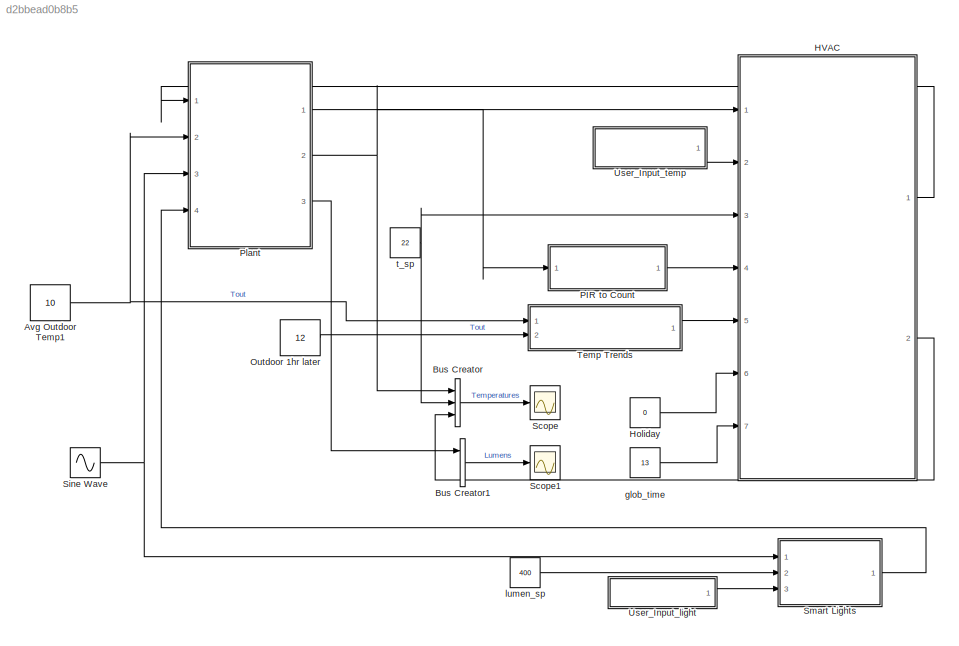
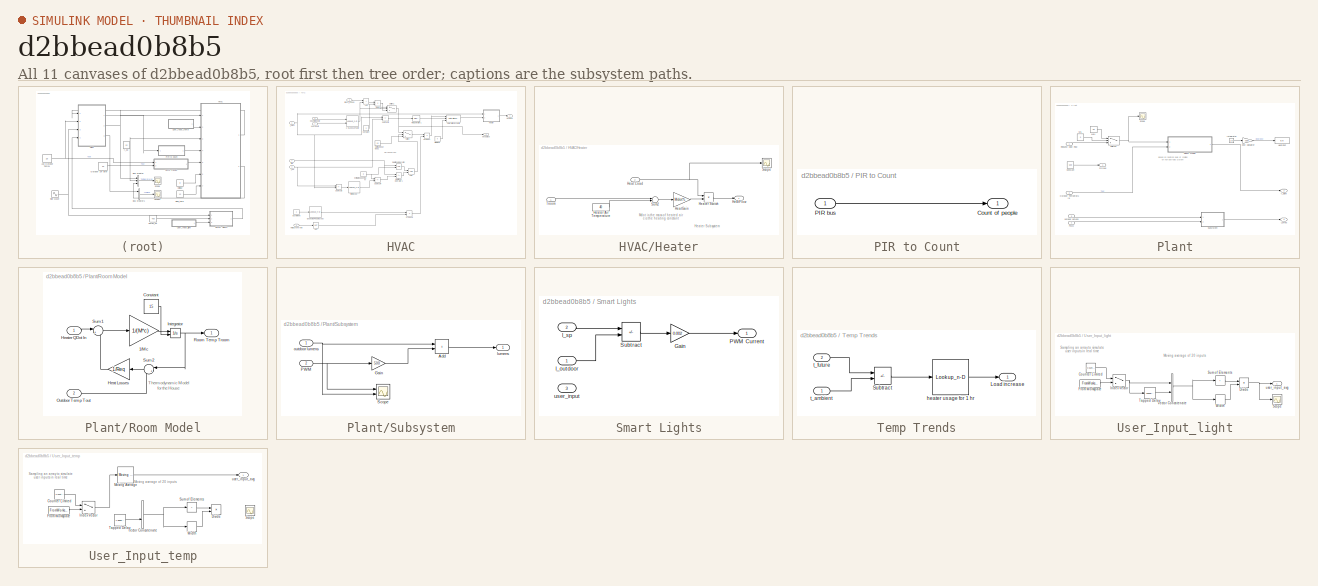
[diagram: thumbnail index - all 11 canvases of the model, root first then tree order]
MODEL slx_d2bbead0b8b5
KIND model
CONFIG AbsTol = auto
CONFIG EnableMultiTasking = off
CONFIG FixedStep = auto
CONFIG MaxStep = auto
CONFIG MinStep = auto
CONFIG RelTol = 1e-3
CONFIG SampleTimeConstraint = Unconstrained
CONFIG Solver = ode8
CONFIG SolverName = ode8
CONFIG StartTime = 0.0
CONFIG StopTime = 20000
BLOCK [Constant] Avg Outdoor Temp1
  SampleTime = -1
  Value = 10
BLOCK [BusCreator] Bus Creator
  DisplayOption = bar
  InheritFromInputs = on
  Inputs = 3
  Ports = [3, 1]
BLOCK [BusCreator] Bus Creator1
  DisplayOption = bar
  InheritFromInputs = on
  Inputs = 3
  Ports = [3, 1]
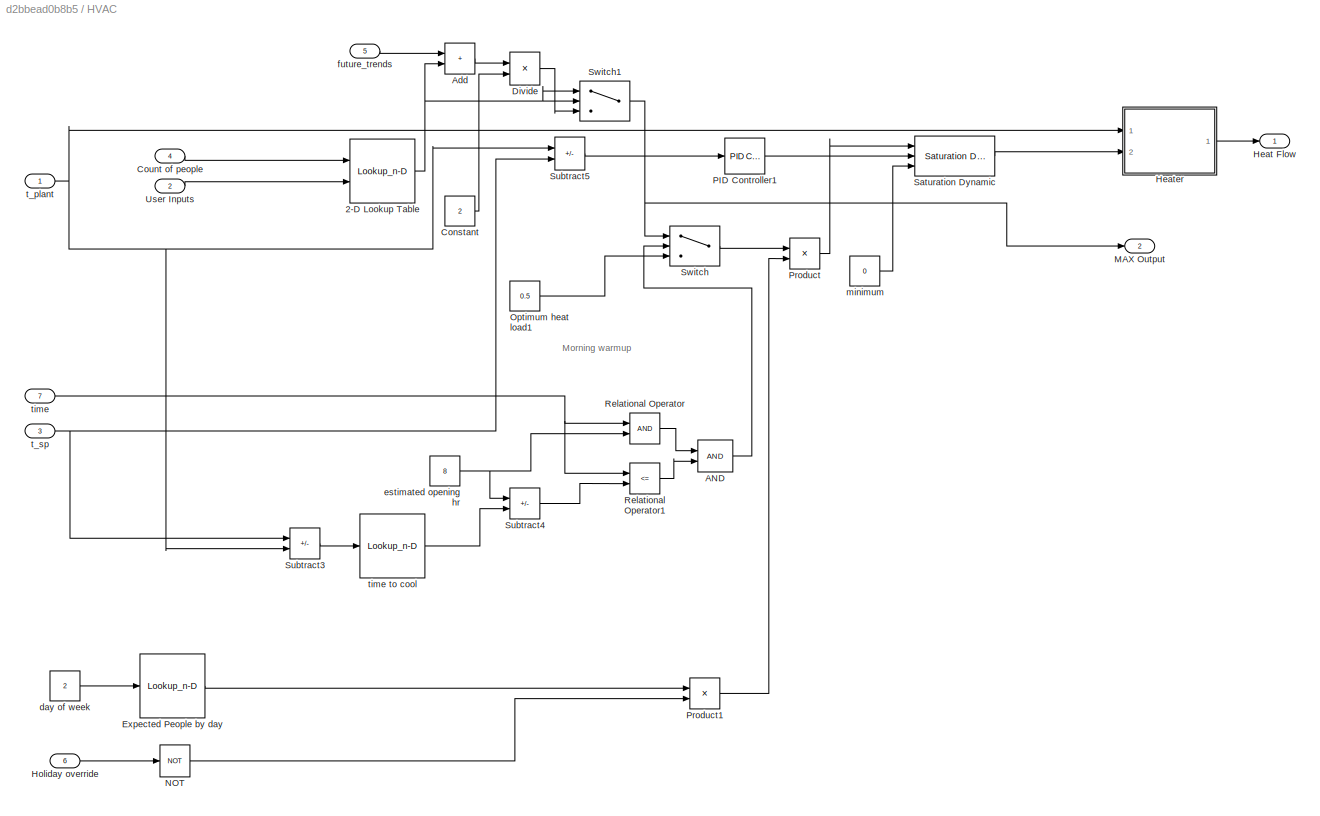
BLOCK [SubSystem] HVAC
  Ports = [7, 2]
  RequestExecContextInheritance = off
BLOCK [Lookup_n-D] HVAC/2-D Lookup Table
  BreakpointsForDimension1 = [0 200 400 600 800 1000]
  BreakpointsForDimension2 = [-1 -0.75 -0.5 -0.25 0 0.25 0.5 0.75 1]
  InternalRulePriority = Speed
  Ports = [2, 1]
  RndMeth = Simplest
  Table = [ 0 0 0 0 0 0 0 0 0 ; -0.4 -0.3 -0.2 -0.1 0 0.1 0.2 0.3 0.4 ; -0.8 -0.6 -0.4 -0.2 0 0.2 0.4 0.6 0.8;-1 -1 -0.66 -0.33 0 0.33 0.66 1 1; -1 -1 -1 -0.5 0 0.5 1 1 1; -1 -1 -1 -1 0 1 1 1 1 ]
BLOCK [Logic] HVAC/AND
  AllPortsSameDT = off
  IconShape = distinctive
  OutDataTypeStr = boolean
  Ports = [2, 1]
BLOCK [Sum] HVAC/Add
  IconShape = rectangular
  Ports = [2, 1]
BLOCK [Constant] HVAC/Constant
  SampleTime = -1
  Value = 2
BLOCK [Inport] HVAC/Count of people
  Port = 4
BLOCK [Product] HVAC/Divide
  Inputs = */
  Ports = [2, 1]
BLOCK [Lookup_n-D] HVAC/Expected People by day
  BreakpointsForDimension1 = [1:7]
  BreakpointsForDimension1FirstPoint = 7
  BreakpointsForDimension2FirstPoint = 10
  BreakpointsForDimension2Spacing = 12
  DiagnosticForOutOfRangeInput = Error
  IndexSearchMethod = Evenly spaced points
  InternalRulePriority = Speed
  InterpMethod = Flat
  LookupTableObject = ''
  NumberOfTableDimensions = 1
  Ports = [1, 1]
  RndMeth = Simplest
  Table = [0 1 1 1 1 1 1]
BLOCK [Outport] HVAC/Heat Flow
BLOCK [SubSystem] HVAC/Heater
  Ports = [2, 1]
  RequestExecContextInheritance = off
BLOCK [Inport] HVAC/Heater/Heat Load
  Port = 2
BLOCK [Outport] HVAC/Heater/HeatFlow
  VectorParamsAs1DForOutWhenUnconnected = off
BLOCK [Gain] HVAC/Heater/HeatGain
  Gain = Mdot*c
BLOCK [Constant] HVAC/Heater/Heater Air Temperature
  Value = 40
BLOCK [Product] HVAC/Heater/Heater Switch
  Ports = [2, 1]
  RndMeth = Zero
BLOCK [Scope] HVAC/Heater/Scope
  Floating = off
  NumInputPorts = 1
  Ports = [1]
  ScopeSpecificationString = Simulink.scopes.TimeScopeBlockCfg('CurrentConfiguration', extmgr.ConfigurationSet(extmgr.Configuration('Core','General UI',true),extmgr.Configuration('Core','Source UI',true),extmgr.Configuration('Sources','WiredSimulink',true,'DataLoggingVariableName','ScopeData2'),extmgr.Configuration('Visuals','Time Domain',true,'SerializedDisplays',{struct('MinYLimReal','-0.0625','MaxYLimReal','0.5625','YLabel...<+1362ch>
BLOCK [Sum] HVAC/Heater/Sum2
  Inputs = |-+
  Ports = [2, 1]
BLOCK [Inport] HVAC/Heater/Troom
BLOCK [Inport] HVAC/Holiday override
  Port = 6
BLOCK [Outport] HVAC/MAX Output
  Port = 2
BLOCK [Logic] HVAC/NOT
  AllPortsSameDT = off
  IconShape = distinctive
  Operator = NOT
  OutDataTypeStr = boolean
  Ports = [1, 1]
BLOCK [Constant] HVAC/Optimum heat load1
  SampleTime = -1
  Value = 0.5
BLOCK [Reference] HVAC/PID Controller1  REF=simulink/Continuous/PID Controller
  Ports = [1, 1]
  SourceBlock = simulink/Continuous/PID Controller
  SourceProductBaseCode = SL
  SourceType = PID 1dof
BLOCK [Product] HVAC/Product
  Ports = [2, 1]
BLOCK [Product] HVAC/Product1
  Ports = [2, 1]
BLOCK [RelationalOperator] HVAC/Relational Operator
  InputSameDT = off
  OutDataTypeStr = boolean
  Ports = [2, 1]
  RndMeth = Simplest
BLOCK [RelationalOperator] HVAC/Relational Operator1
  InputSameDT = off
  Operator = <=
  OutDataTypeStr = boolean
  Ports = [2, 1]
  RndMeth = Simplest
BLOCK [Reference] HVAC/Saturation Dynamic  REF=simulink/Discontinuities/Saturation
Dynamic
  Ports = [3, 1]
  SourceBlock = simulink/Discontinuities/Saturation\nDynamic
  SourceProductBaseCode = SL
  SourceType = Saturation Dynamic
BLOCK [Sum] HVAC/Subtract3
  IconShape = rectangular
  Inputs = +-
  Ports = [2, 1]
BLOCK [Sum] HVAC/Subtract4
  IconShape = rectangular
  Inputs = +-
  Ports = [2, 1]
BLOCK [Sum] HVAC/Subtract5
  IconShape = rectangular
  Inputs = -+
  Ports = [2, 1]
BLOCK [Switch] HVAC/Switch
  Criteria = u2 ~= 0
  InputSameDT = off
  SaturateOnIntegerOverflow = off
BLOCK [Switch] HVAC/Switch1
  Criteria = u2 ~= 0
  InputSameDT = off
  SaturateOnIntegerOverflow = off
BLOCK [Inport] HVAC/User Inputs
  Port = 2
BLOCK [Constant] HVAC/day of week
  SampleTime = -1
  Value = 2
BLOCK [Constant] HVAC/estimated opening hr
  SampleTime = -1
  Value = 8
BLOCK [Inport] HVAC/future_trends
  Port = 5
BLOCK [Constant] HVAC/minimum
  SampleTime = -1
  Value = 0
BLOCK [Inport] HVAC/t_plant
BLOCK [Inport] HVAC/t_sp
  Port = 3
BLOCK [Inport] HVAC/time
  Port = 7
BLOCK [Lookup_n-D] HVAC/time to cool
  BreakpointsForDimension1 = [-10:10]
  BreakpointsForDimension1FirstPoint = 7
  BreakpointsForDimension2FirstPoint = 10
  BreakpointsForDimension2Spacing = 12
  DiagnosticForOutOfRangeInput = Error
  IndexSearchMethod = Evenly spaced points
  InternalRulePriority = Speed
  InterpMethod = Flat
  LookupTableObject = ''
  NumberOfTableDimensions = 1
  Ports = [1, 1]
  RndMeth = Simplest
  Table = [-4.7 -3.8 -3 -2.3 -1.7 -1.2 -0.8 -0.5 -0.25 -0.1 0 0.1 0.25 0.5 0.8 1.2 1.7 2.3 3 3.8 4.7]
BLOCK [Constant] Holiday
  SampleTime = -1
  Value = 0
BLOCK [Constant] Outdoor 1hr later
  SampleTime = -1
  Value = 12
BLOCK [SubSystem] PIR to Count
  Ports = [1, 1]
  RequestExecContextInheritance = off
BLOCK [Outport] PIR to Count/Count of people
BLOCK [Inport] PIR to Count/PIR bus
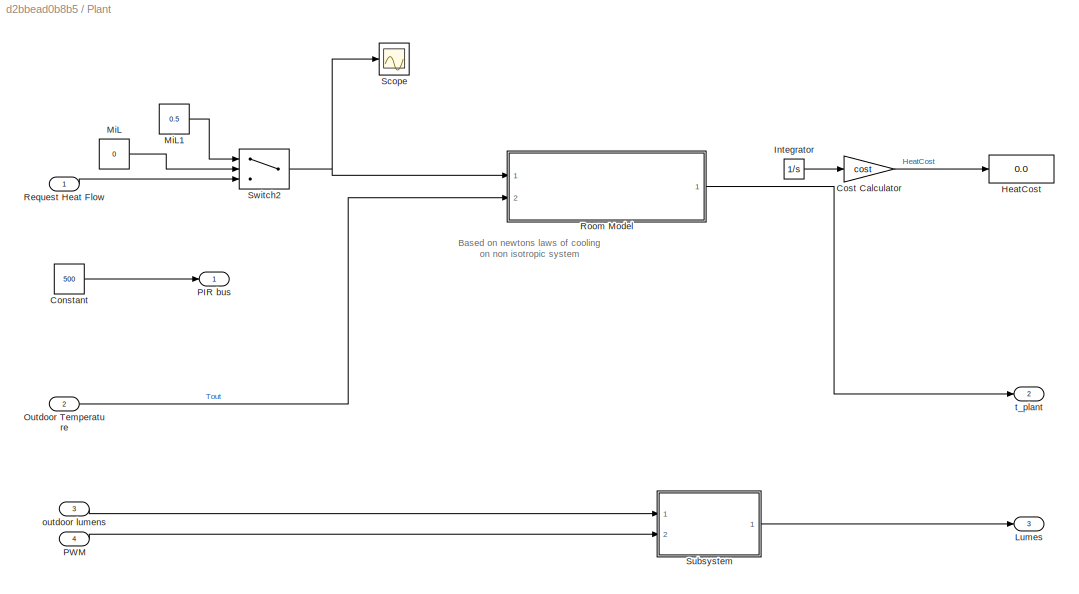
BLOCK [SubSystem] Plant
  Ports = [4, 3]
  RequestExecContextInheritance = off
BLOCK [Constant] Plant/Constant
  SampleTime = -1
  Value = 500
BLOCK [Gain] Plant/Cost Calculator
  Commented = on
  Gain = cost
  OutDataTypeStr = Inherit: Same as input
  ParamDataTypeStr = Inherit: Same as input
  SaturateOnIntegerOverflow = on
BLOCK [Display] Plant/HeatCost
  Commented = on
  Decimation = 1
  Ports = [1]
BLOCK [Integrator] Plant/Integrator
  Commented = on
  Ports = [1, 1]
BLOCK [Outport] Plant/Lumes
  Port = 3
BLOCK [Constant] Plant/MiL
  SampleTime = -1
  Value = 0
BLOCK [Constant] Plant/MiL1
  SampleTime = -1
  Value = 0.5
BLOCK [Inport] Plant/Outdoor Temperature
  Port = 2
BLOCK [Outport] Plant/PIR bus
BLOCK [Inport] Plant/PWM
  Port = 4
BLOCK [Inport] Plant/Request Heat Flow
BLOCK [SubSystem] Plant/Room Model
  Ports = [2, 1]
  RequestExecContextInheritance = off
BLOCK [Gain] Plant/Room Model/1//Mc
  Gain = 1/(M*c)
  OutDataTypeStr = Inherit: Same as input
  ParamDataTypeStr = Inherit: Same as input
  SaturateOnIntegerOverflow = on
BLOCK [Constant] Plant/Room Model/Constant
  SampleTime = -1
  Value = 15
BLOCK [Gain] Plant/Room Model/Heat Losses
  Gain = 1/Req
  OutDataTypeStr = Inherit: Same as input
  ParamDataTypeStr = Inherit: Same as input
  SaturateOnIntegerOverflow = on
BLOCK [Inport] Plant/Room Model/Heater QDot In
BLOCK [Integrator] Plant/Room Model/Integrator
  InitialCondition = TinIC
  InitialConditionSource = external
  Ports = [2, 1]
BLOCK [Inport] Plant/Room Model/Outdoor Temp Tout
  Port = 2
BLOCK [Outport] Plant/Room Model/Room Temp Troom
  InitialOutput = 0
  VectorParamsAs1DForOutWhenUnconnected = off
BLOCK [Sum] Plant/Room Model/Sum1
  InputSameDT = on
  Inputs = |+-
  OutDataTypeStr = Inherit: Same as first input
  Ports = [2, 1]
  SaturateOnIntegerOverflow = on
BLOCK [Sum] Plant/Room Model/Sum2
  InputSameDT = on
  Inputs = |+-
  OutDataTypeStr = Inherit: Same as first input
  Ports = [2, 1]
  SaturateOnIntegerOverflow = on
BLOCK [Scope] Plant/Scope
  Floating = off
  NumInputPorts = 1
  Ports = [1]
  ScopeSpecificationString = Simulink.scopes.TimeScopeBlockCfg('CurrentConfiguration', extmgr.ConfigurationSet(extmgr.Configuration('Core','General UI',true),extmgr.Configuration('Core','Source UI',true),extmgr.Configuration('Sources','WiredSimulink',true,'DataLoggingVariableName','ScopeData4'),extmgr.Configuration('Visuals','Time Domain',true,'SerializedDisplays',{struct('MinYLimReal','-15709.375','MaxYLimReal','141384.375',...<+1388ch>
BLOCK [SubSystem] Plant/Subsystem
  Ports = [2, 1]
  RequestExecContextInheritance = off
BLOCK [Sum] Plant/Subsystem/Add
  IconShape = rectangular
  Ports = [2, 1]
BLOCK [Gain] Plant/Subsystem/Gain
  Gain = 500
BLOCK [Inport] Plant/Subsystem/PWM
  Port = 2
BLOCK [Scope] Plant/Subsystem/Scope
  Floating = off
  NumInputPorts = 2
  Ports = [2]
  ScopeSpecificationString = Simulink.scopes.TimeScopeBlockCfg('CurrentConfiguration', extmgr.ConfigurationSet(extmgr.Configuration('Core','General UI',true),extmgr.Configuration('Core','Source UI',true),extmgr.Configuration('Sources','WiredSimulink',true,'DataLoggingVariableName','ScopeData7'),extmgr.Configuration('Visuals','Time Domain',true,'SerializedDisplays',{struct('MinYLimReal','-124.64593','MaxYLimReal','124.91328','...<+1422ch>
BLOCK [Outport] Plant/Subsystem/lumens
BLOCK [Inport] Plant/Subsystem/outdoor lumens
BLOCK [Switch] Plant/Switch2
  Criteria = u2 > Threshold
  InputSameDT = off
  SaturateOnIntegerOverflow = off
BLOCK [Inport] Plant/outdoor lumens
  Port = 3
BLOCK [Outport] Plant/t_plant
  Port = 2
BLOCK [Scope] Scope
  Floating = off
  NumInputPorts = 1
  Ports = [1]
  ScopeSpecificationString = Simulink.scopes.TimeScopeBlockCfg('CurrentConfiguration', extmgr.ConfigurationSet(extmgr.Configuration('Core','General UI',true,'FigureColor',[0.941176470588235 0.941176470588235 0.941176470588235]),extmgr.Configuration('Core','Source UI',true),extmgr.Configuration('Sources','WiredSimulink',true),extmgr.Configuration('Visuals','Time Domain',true,'SerializedDisplays',{struct('MinYLimReal','-2.1875'...<+1929ch>
BLOCK [Scope] Scope1
  Floating = off
  NumInputPorts = 1
  Ports = [1]
  ScopeSpecificationString = Simulink.scopes.TimeScopeBlockCfg('CurrentConfiguration', extmgr.ConfigurationSet(extmgr.Configuration('Core','General UI',true),extmgr.Configuration('Core','Source UI',true),extmgr.Configuration('Sources','WiredSimulink',true,'DataLoggingVariableName','ScopeData6'),extmgr.Configuration('Visuals','Time Domain',true,'SerializedDisplays',{struct('MinYLimReal','-50.00000','MaxYLimReal','450.00000','Y...<+1451ch>
BLOCK [Sin] Sine Wave
  Amplitude = 100
  Frequency = 0.001
  Ports = [0, 1]
  SampleTime = 0
BLOCK [SubSystem] Smart Lights
  Ports = [3, 1]
  RequestExecContextInheritance = off
BLOCK [Gain] Smart Lights/Gain
  Gain = 0.002
BLOCK [Outport] Smart Lights/PWM Current
BLOCK [Sum] Smart Lights/Subtract
  IconShape = rectangular
  Inputs = +-
  Ports = [2, 1]
BLOCK [Inport] Smart Lights/l_outdoor
BLOCK [Inport] Smart Lights/l_sp
  Port = 2
BLOCK [Inport] Smart Lights/user_input
  Port = 3
BLOCK [SubSystem] Temp Trends
  Ports = [2, 1]
  RequestExecContextInheritance = off
BLOCK [Outport] Temp Trends/Load increase
BLOCK [Sum] Temp Trends/Subtract
  IconShape = rectangular
  Inputs = +-
  Ports = [2, 1]
BLOCK [Lookup_n-D] Temp Trends/heater usage for 1 hr
  BreakpointsForDimension1 = [-2 -1.5 -1 -0.5 0 0.5 1 1.5 2]
  BreakpointsForDimension1FirstPoint = 7
  BreakpointsForDimension2FirstPoint = 10
  BreakpointsForDimension2Spacing = 12
  DiagnosticForOutOfRangeInput = Error
  IndexSearchMethod = Evenly spaced points
  InternalRulePriority = Speed
  InterpMethod = Flat
  LookupTableObject = ''
  NumberOfTableDimensions = 1
  Ports = [1, 1]
  RndMeth = Simplest
  Table = [-0.2 -0.15 -0.1 -0.05 0 0.05 0.1 0.15 0.2]
BLOCK [Inport] Temp Trends/t_ambient
BLOCK [Inport] Temp Trends/t_future
  Port = 2
BLOCK [SubSystem] User_Input_light
  Ports = [0, 1]
  RequestExecContextInheritance = off
BLOCK [Reference] User_Input_light/Counter Limited  REF=simulink/Sources/Counter
Limited
  Ports = [0, 1]
  SourceBlock = simulink/Sources/Counter\nLimited
  SourceProductBaseCode = SL
  SourceType = Counter Limited
BLOCK [Product] User_Input_light/Divide
  Inputs = */
  Ports = [2, 1]
BLOCK [FromWorkspace] User_Input_light/From Workspace
  VariableName = a
BLOCK [MultiPortSwitch] User_Input_light/Index Vector
  DataPortOrder = Zero-based contiguous
  InputSameDT = off
  Inputs = 1
  Ports = [2, 1]
  SaturateOnIntegerOverflow = off
  zeroidx = on
BLOCK [Scope] User_Input_light/Scope
  Floating = off
  NumInputPorts = 1
  Ports = [1]
  ScopeSpecificationString = Simulink.scopes.TimeScopeBlockCfg('CurrentConfiguration', extmgr.ConfigurationSet(extmgr.Configuration('Core','General UI',true),extmgr.Configuration('Core','Source UI',true),extmgr.Configuration('Sources','WiredSimulink',true,'DataLoggingVariableName','ScopeData1'),extmgr.Configuration('Visuals','Time Domain',true,'SerializedDisplays',{struct('MinYLimReal','-0.07738','MaxYLimReal','0.69643','YLab...<+1394ch>
BLOCK [Sum] User_Input_light/Sum of Elements
  IconShape = rectangular
  Inputs = +
  Ports = [1, 1]
BLOCK [Reference] User_Input_light/Tapped Delay  REF=simulink/Discrete/Tapped Delay
  Ports = [1, 1]
  SourceBlock = simulink/Discrete/Tapped Delay
  SourceProductBaseCode = SL
  SourceType = Tapped Delay Line
BLOCK [Concatenate] User_Input_light/Vector Concatenate
  Ports = [2, 1]
BLOCK [Width] User_Input_light/Width
BLOCK [Outport] User_Input_light/user_input_avg
BLOCK [SubSystem] User_Input_temp
  Ports = [0, 1]
  RequestExecContextInheritance = off
BLOCK [Reference] User_Input_temp/Counter Limited  REF=simulink/Sources/Counter
Limited
  Ports = [0, 1]
  SourceBlock = simulink/Sources/Counter\nLimited
  SourceProductBaseCode = SL
  SourceType = Counter Limited
BLOCK [Product] User_Input_temp/Divide
  Inputs = */
  Ports = [2, 1]
BLOCK [FromWorkspace] User_Input_temp/From Workspace
  VariableName = a
BLOCK [MultiPortSwitch] User_Input_temp/Index Vector
  DataPortOrder = Zero-based contiguous
  InputSameDT = off
  Inputs = 1
  Ports = [2, 1]
  SaturateOnIntegerOverflow = off
  zeroidx = on
BLOCK [Reference] User_Input_temp/Moving Average  REF=dspstat3/Moving
Average
  Ports = [1, 1]
  SourceBlock = dspstat3/Moving\nAverage
  SourceProductBaseCode = DS
  SourceType = dsp.simulink.MovingAverage
BLOCK [Scope] User_Input_temp/Scope
  Floating = off
  NumInputPorts = 1
  Ports = [1]
  ScopeSpecificationString = Simulink.scopes.TimeScopeBlockCfg('CurrentConfiguration', extmgr.ConfigurationSet(extmgr.Configuration('Core','General UI',true),extmgr.Configuration('Core','Source UI',true),extmgr.Configuration('Sources','WiredSimulink',true,'DataLoggingVariableName','ScopeData3'),extmgr.Configuration('Visuals','Time Domain',true,'SerializedDisplays',{struct('MinYLimReal','-1.00000','MaxYLimReal','1.00000','YLab...<+1403ch>
BLOCK [Sum] User_Input_temp/Sum of Elements
  IconShape = rectangular
  Inputs = +
  Ports = [1, 1]
BLOCK [Reference] User_Input_temp/Tapped Delay  REF=simulink/Discrete/Tapped Delay
  Ports = [1, 1]
  SourceBlock = simulink/Discrete/Tapped Delay
  SourceProductBaseCode = SL
  SourceType = Tapped Delay Line
BLOCK [Concatenate] User_Input_temp/Vector Concatenate
  Ports = [2, 1]
BLOCK [Width] User_Input_temp/Width
BLOCK [Outport] User_Input_temp/user_input_avg
BLOCK [Constant] glob_time
  SampleTime = -1
  Value = 13
BLOCK [Constant] lumen_sp
  Value = 400
BLOCK [Constant] t_sp
  SampleTime = -1
  Value = 22
ANNOTATION HVAC: Morning warmup
ANNOTATION HVAC/Heater: Heater Subsystem
ANNOTATION HVAC/Heater: Mdot is the mass of heated air c is the heating constant
ANNOTATION Plant: Based on newtons laws of cooling on non isotropic system
ANNOTATION Plant/Room Model: Thermodynamic Model for the House
ANNOTATION User_Input_light: Moving average of 20 inputs
ANNOTATION User_Input_light: Sampling an array to simulate user inputs in real time
ANNOTATION User_Input_temp: Moving average of 20 inputs
ANNOTATION User_Input_temp: Sampling an array to simulate user inputs in real time
NET Avg Outdoor Temp1:1 -> Plant:2, Temp Trends:1
LINE Bus Creator1:1 -> Scope1:1
LINE Bus Creator:1 -> Scope:1
NET HVAC/2-D Lookup Table:1 -> HVAC/Add:2, HVAC/Switch1:1, HVAC/Switch1:2
LINE HVAC/AND:1 -> HVAC/Switch:2
LINE HVAC/Add:1 -> HVAC/Divide:1
LINE HVAC/Constant:1 -> HVAC/Divide:2
LINE HVAC/Count of people:1 -> HVAC/2-D Lookup Table:1
LINE HVAC/Divide:1 -> HVAC/Switch1:3
LINE HVAC/Expected People by day:1 -> HVAC/Product1:1
NET HVAC/Heater/Heat Load:1 -> HVAC/Heater/Heater Switch:1, HVAC/Heater/Scope:1
LINE HVAC/Heater/HeatGain:1 -> HVAC/Heater/Heater Switch:2
LINE HVAC/Heater/Heater Air Temperature:1 -> HVAC/Heater/Sum2:2
LINE HVAC/Heater/Heater Switch:1 -> HVAC/Heater/HeatFlow:1
LINE HVAC/Heater/Sum2:1 -> HVAC/Heater/HeatGain:1
LINE HVAC/Heater/Troom:1 -> HVAC/Heater/Sum2:1
LINE HVAC/Heater:1 -> HVAC/Heat Flow:1
LINE HVAC/Holiday override:1 -> HVAC/NOT:1
LINE HVAC/NOT:1 -> HVAC/Product1:2
LINE HVAC/Optimum heat load1:1 -> HVAC/Switch:3
LINE HVAC/PID Controller1:1 -> HVAC/Saturation Dynamic:2
LINE HVAC/Product1:1 -> HVAC/Product:2
LINE HVAC/Product:1 -> HVAC/Saturation Dynamic:1
LINE HVAC/Relational Operator1:1 -> HVAC/AND:2
LINE HVAC/Relational Operator:1 -> HVAC/AND:1
LINE HVAC/Saturation Dynamic:1 -> HVAC/Heater:2
LINE HVAC/Subtract3:1 -> HVAC/time to cool:1
LINE HVAC/Subtract4:1 -> HVAC/Relational Operator1:2
LINE HVAC/Subtract5:1 -> HVAC/PID Controller1:1
NET HVAC/Switch1:1 -> HVAC/MAX Output:1, HVAC/Switch:1
LINE HVAC/Switch:1 -> HVAC/Product:1
LINE HVAC/User Inputs:1 -> HVAC/2-D Lookup Table:2
LINE HVAC/day of week:1 -> HVAC/Expected People by day:1
NET HVAC/estimated opening hr:1 -> HVAC/Relational Operator:2, HVAC/Subtract4:1
LINE HVAC/future_trends:1 -> HVAC/Add:1
LINE HVAC/minimum:1 -> HVAC/Saturation Dynamic:3
NET HVAC/t_plant:1 -> HVAC/Heater:1, HVAC/Subtract3:2, HVAC/Subtract5:1
NET HVAC/t_sp:1 -> HVAC/Subtract3:1, HVAC/Subtract5:2
LINE HVAC/time to cool:1 -> HVAC/Subtract4:2
NET HVAC/time:1 -> HVAC/Relational Operator1:1, HVAC/Relational Operator:1
LINE HVAC:1 -> Plant:1
LINE HVAC:2 -> Bus Creator:3
LINE Holiday:1 -> HVAC:6
LINE Outdoor 1hr later:1 -> Temp Trends:2
LINE PIR to Count/PIR bus:1 -> PIR to Count/Count of people:1
LINE PIR to Count:1 -> HVAC:4
LINE Plant/Constant:1 -> Plant/PIR bus:1
LINE Plant/Cost Calculator:1 -> Plant/HeatCost:1
LINE Plant/Integrator:1 -> Plant/Cost Calculator:1
LINE Plant/MiL1:1 -> Plant/Switch2:1
LINE Plant/MiL:1 -> Plant/Switch2:2
LINE Plant/Outdoor Temperature:1 -> Plant/Room Model:2
LINE Plant/PWM:1 -> Plant/Subsystem:2
LINE Plant/Request Heat Flow:1 -> Plant/Switch2:3
LINE Plant/Room Model/1//Mc:1 -> Plant/Room Model/Integrator:1
LINE Plant/Room Model/Constant:1 -> Plant/Room Model/Integrator:2
LINE Plant/Room Model/Heat Losses:1 -> Plant/Room Model/Sum1:2
LINE Plant/Room Model/Heater QDot In:1 -> Plant/Room Model/Sum1:1
NET Plant/Room Model/Integrator:1 -> Plant/Room Model/Room Temp Troom:1, Plant/Room Model/Sum2:1
LINE Plant/Room Model/Outdoor Temp Tout:1 -> Plant/Room Model/Sum2:2
LINE Plant/Room Model/Sum1:1 -> Plant/Room Model/1//Mc:1
LINE Plant/Room Model/Sum2:1 -> Plant/Room Model/Heat Losses:1
LINE Plant/Room Model:1 -> Plant/t_plant:1
LINE Plant/Subsystem/Add:1 -> Plant/Subsystem/lumens:1
LINE Plant/Subsystem/Gain:1 -> Plant/Subsystem/Add:2
NET Plant/Subsystem/PWM:1 -> Plant/Subsystem/Gain:1, Plant/Subsystem/Scope:1
NET Plant/Subsystem/outdoor lumens:1 -> Plant/Subsystem/Add:1, Plant/Subsystem/Scope:2
LINE Plant/Subsystem:1 -> Plant/Lumes:1
NET Plant/Switch2:1 -> Plant/Room Model:1, Plant/Scope:1
LINE Plant/outdoor lumens:1 -> Plant/Subsystem:1
LINE Plant:1 -> PIR to Count:1
NET Plant:2 -> Bus Creator:1, HVAC:1
LINE Plant:3 -> Bus Creator1:1
NET Sine Wave:1 -> Plant:3, Smart Lights:1
LINE Smart Lights/Gain:1 -> Smart Lights/PWM Current:1
LINE Smart Lights/Subtract:1 -> Smart Lights/Gain:1
LINE Smart Lights/l_outdoor:1 -> Smart Lights/Subtract:2
LINE Smart Lights/l_sp:1 -> Smart Lights/Subtract:1
LINE Smart Lights:1 -> Plant:4
LINE Temp Trends/Subtract:1 -> Temp Trends/heater usage for 1 hr:1
LINE Temp Trends/heater usage for 1 hr:1 -> Temp Trends/Load increase:1
LINE Temp Trends/t_ambient:1 -> Temp Trends/Subtract:2
LINE Temp Trends/t_future:1 -> Temp Trends/Subtract:1
LINE Temp Trends:1 -> HVAC:5
LINE User_Input_light/Counter Limited:1 -> User_Input_light/Index Vector:1
NET User_Input_light/Divide:1 -> User_Input_light/Scope:1, User_Input_light/user_input_avg:1
LINE User_Input_light/From Workspace:1 -> User_Input_light/Index Vector:2
NET User_Input_light/Index Vector:1 -> User_Input_light/Tapped Delay:1, User_Input_light/Vector Concatenate:1
LINE User_Input_light/Sum of Elements:1 -> User_Input_light/Divide:1
LINE User_Input_light/Tapped Delay:1 -> User_Input_light/Vector Concatenate:2
NET User_Input_light/Vector Concatenate:1 -> User_Input_light/Sum of Elements:1, User_Input_light/Width:1
LINE User_Input_light/Width:1 -> User_Input_light/Divide:2
LINE User_Input_light:1 -> Smart Lights:3
LINE User_Input_temp/Counter Limited:1 -> User_Input_temp/Index Vector:1
LINE User_Input_temp/From Workspace:1 -> User_Input_temp/Index Vector:2
LINE User_Input_temp/Index Vector:1 -> User_Input_temp/Moving Average:1
LINE User_Input_temp/Moving Average:1 -> User_Input_temp/user_input_avg:1
LINE User_Input_temp/Sum of Elements:1 -> User_Input_temp/Divide:1
LINE User_Input_temp/Tapped Delay:1 -> User_Input_temp/Vector Concatenate:2
NET User_Input_temp/Vector Concatenate:1 -> User_Input_temp/Sum of Elements:1, User_Input_temp/Width:1
LINE User_Input_temp/Width:1 -> User_Input_temp/Divide:2
LINE User_Input_temp:1 -> HVAC:2
LINE glob_time:1 -> HVAC:7
LINE lumen_sp:1 -> Smart Lights:2
NET t_sp:1 -> Bus Creator:2, HVAC:3
note: NET lines group one-source signal fan-out (src -> all destinations, sorted); 1:1 wires keep LINE
